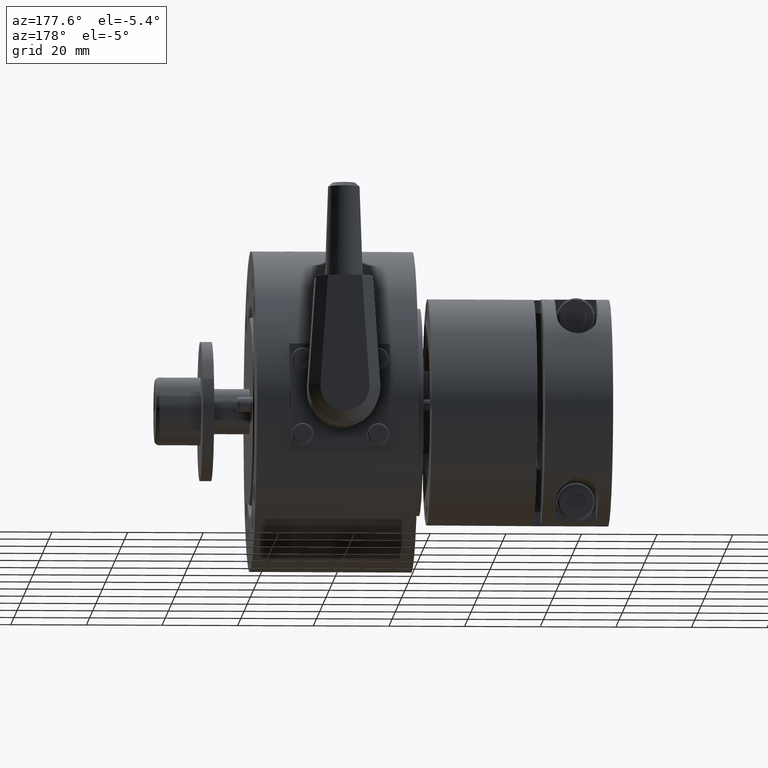
[diagram: clean part render]
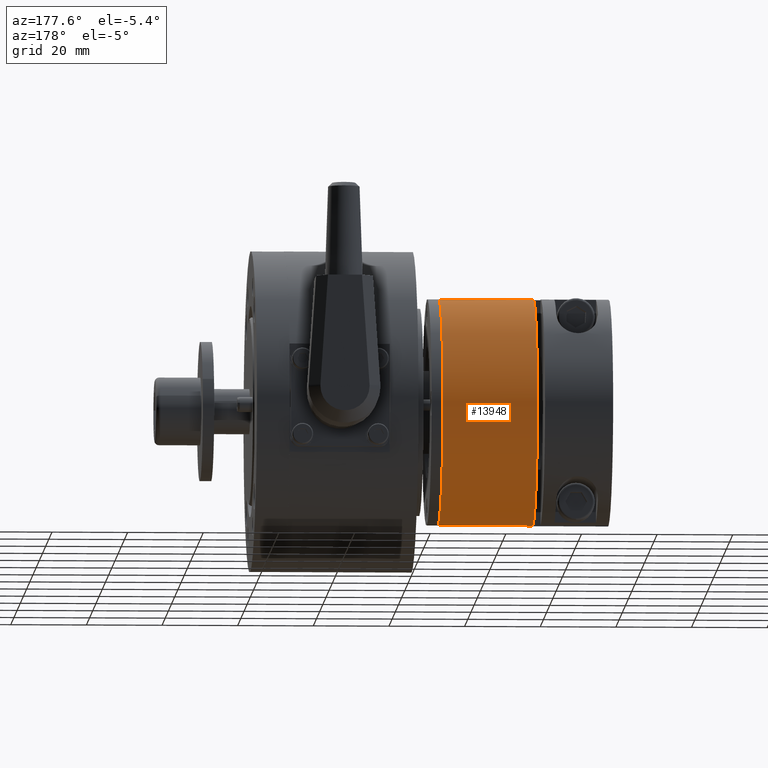
[diagram: same view with one face highlighted and labeled with its STEP entity id]
A machine part, auxiliary view. The second image highlights one B-rep face of the part: STEP entity #13948.
In plain terms, the highlighted cylindrical surface (partial cylindrical patch) has radius 30 mm, axis along (1, 0, 0).
Its self-contained STEP definition (entity closure, byte-faithful):
#21 = CIRCLE ( 'NONE', #18350, 30.00000000000000355 ) ;
#832 = CARTESIAN_POINT ( 'NONE',  ( 0.000000000000000000, 0.000000000000000000, 30.00000000000000355 ) ) ;
#1650 = ORIENTED_EDGE ( 'NONE', *, *, #14296, .F. ) ;
#1929 = CARTESIAN_POINT ( 'NONE',  ( 24.99999999999999645, 3.673940397442059178E-15, -30.00000000000000000 ) ) ;
#2196 = CARTESIAN_POINT ( 'NONE',  ( -9.653853281810471643, 3.673940397442059178E-15, -30.00000000000000000 ) ) ;
#2736 = DIRECTION ( 'NONE',  ( 0.000000000000000000, 0.000000000000000000, 1.000000000000000000 ) ) ;
#3781 = DIRECTION ( 'NONE',  ( -1.000000000000000000, -0.000000000000000000, -0.000000000000000000 ) ) ;
#4774 = ORIENTED_EDGE ( 'NONE', *, *, #18903, .F. ) ;
#5936 = LINE ( 'NONE', #2196, #19036 ) ;
#6980 = DIRECTION ( 'NONE',  ( 0.000000000000000000, 0.000000000000000000, 1.000000000000000000 ) ) ;
#7410 = DIRECTION ( 'NONE',  ( -1.000000000000000000, -0.000000000000000000, -0.000000000000000000 ) ) ;
#7692 = VERTEX_POINT ( 'NONE', #1929 ) ;
#7747 = CARTESIAN_POINT ( 'NONE',  ( 24.99999999999999645, 0.000000000000000000, 30.00000000000000000 ) ) ;
#7781 = CARTESIAN_POINT ( 'NONE',  ( 0.000000000000000000, 3.673940397442059967E-15, -30.00000000000000711 ) ) ;
#8250 = DIRECTION ( 'NONE',  ( 0.000000000000000000, 0.000000000000000000, 1.000000000000000000 ) ) ;
#8481 = CARTESIAN_POINT ( 'NONE',  ( -9.653853281810471643, 0.000000000000000000, 0.000000000000000000 ) ) ;
#8698 = EDGE_CURVE ( 'NONE', #18396, #7692, #11158, .T. ) ;
#8795 = EDGE_CURVE ( 'NONE', #7692, #11817, #5936, .T. ) ;
#10072 = DIRECTION ( 'NONE',  ( -1.000000000000000000, -0.000000000000000000, -0.000000000000000000 ) ) ;
#10219 = CARTESIAN_POINT ( 'NONE',  ( -9.653853281810471643, 0.000000000000000000, 30.00000000000000000 ) ) ;
#10282 = DIRECTION ( 'NONE',  ( -1.000000000000000000, -0.000000000000000000, -0.000000000000000000 ) ) ;
#11158 = CIRCLE ( 'NONE', #11519, 30.00000000000000000 ) ;
#11519 = AXIS2_PLACEMENT_3D ( 'NONE', #13193, #19447, #8250 ) ;
#11817 = VERTEX_POINT ( 'NONE', #7781 ) ;
#13193 = CARTESIAN_POINT ( 'NONE',  ( 24.99999999999999645, 0.000000000000000000, 0.000000000000000000 ) ) ;
#13210 = CYLINDRICAL_SURFACE ( 'NONE', #13590, 30.00000000000000000 ) ;
#13590 = AXIS2_PLACEMENT_3D ( 'NONE', #8481, #10072, #6980 ) ;
#13687 = FACE_OUTER_BOUND ( 'NONE', #18357, .T. ) ;
#13948 = ADVANCED_FACE ( 'NONE', ( #13687 ), #13210, .T. ) ;
#14230 = ORIENTED_EDGE ( 'NONE', *, *, #8698, .T. ) ;
#14296 = EDGE_CURVE ( 'NONE', #20468, #11817, #21, .T. ) ;
#14480 = ORIENTED_EDGE ( 'NONE', *, *, #8795, .T. ) ;
#14779 = VECTOR ( 'NONE', #10282, 1000.000000000000000 ) ;
#16489 = LINE ( 'NONE', #10219, #14779 ) ;
#18350 = AXIS2_PLACEMENT_3D ( 'NONE', #20043, #7410, #2736 ) ;
#18357 = EDGE_LOOP ( 'NONE', ( #14230, #14480, #1650, #4774 ) ) ;
#18396 = VERTEX_POINT ( 'NONE', #7747 ) ;
#18903 = EDGE_CURVE ( 'NONE', #18396, #20468, #16489, .T. ) ;
#19036 = VECTOR ( 'NONE', #3781, 1000.000000000000000 ) ;
#19447 = DIRECTION ( 'NONE',  ( -1.000000000000000000, 0.000000000000000000, 0.000000000000000000 ) ) ;
#20043 = CARTESIAN_POINT ( 'NONE',  ( 0.000000000000000000, 0.000000000000000000, 0.000000000000000000 ) ) ;
#20468 = VERTEX_POINT ( 'NONE', #832 ) ;